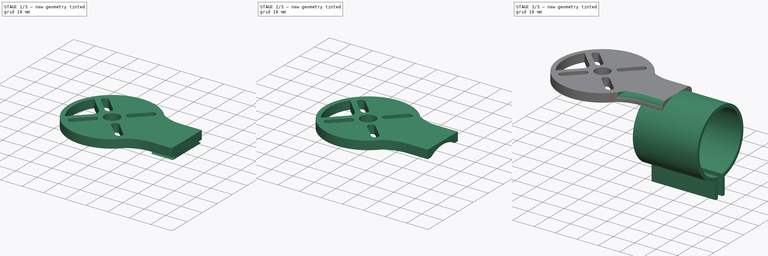
[diagram: build sequence overview — one tinted view per stage of 3, left to right]
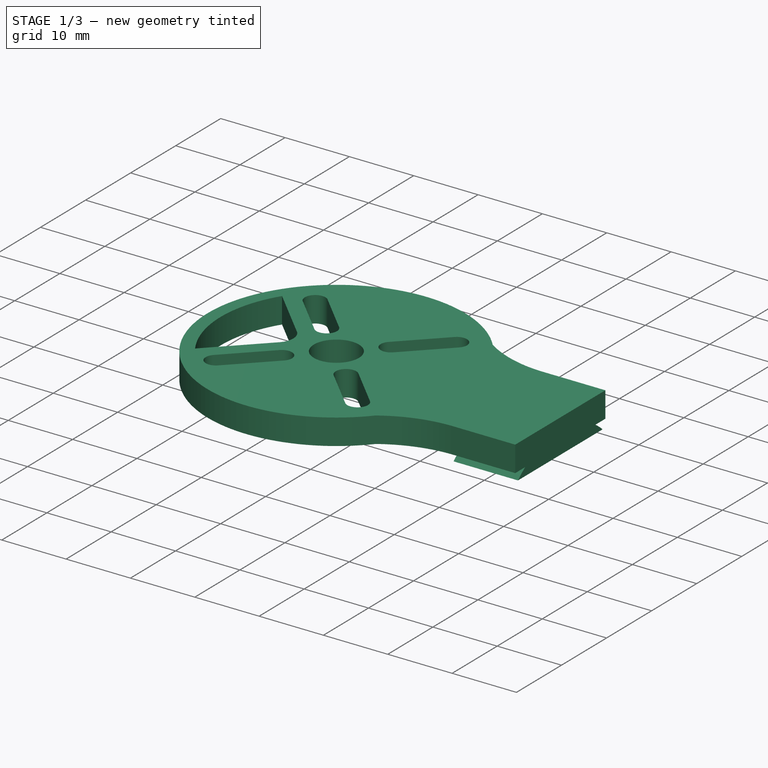
[diagram: stage 1 of 3 — iso view after this stage's code; geometry added in this stage tinted green]
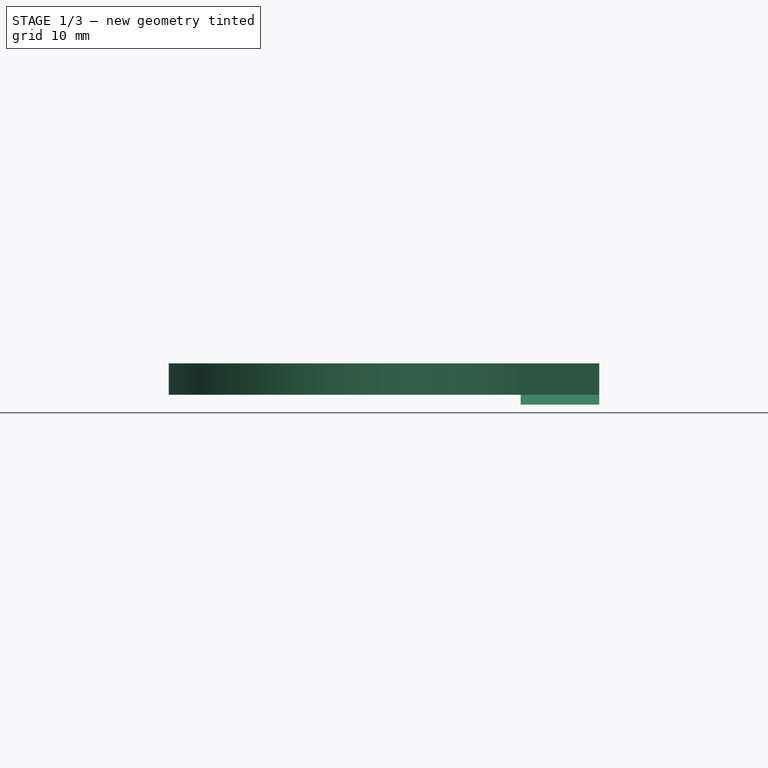
[diagram: stage 1 of 3 — front view after this stage's code; geometry added in this stage tinted green]
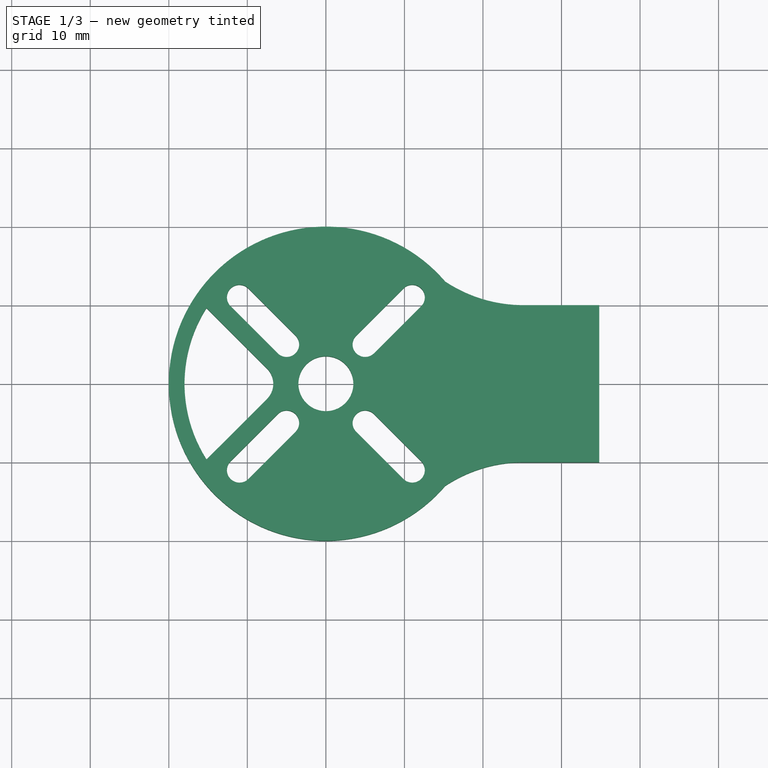
[diagram: stage 1 of 3 — top view after this stage's code; geometry added in this stage tinted green]
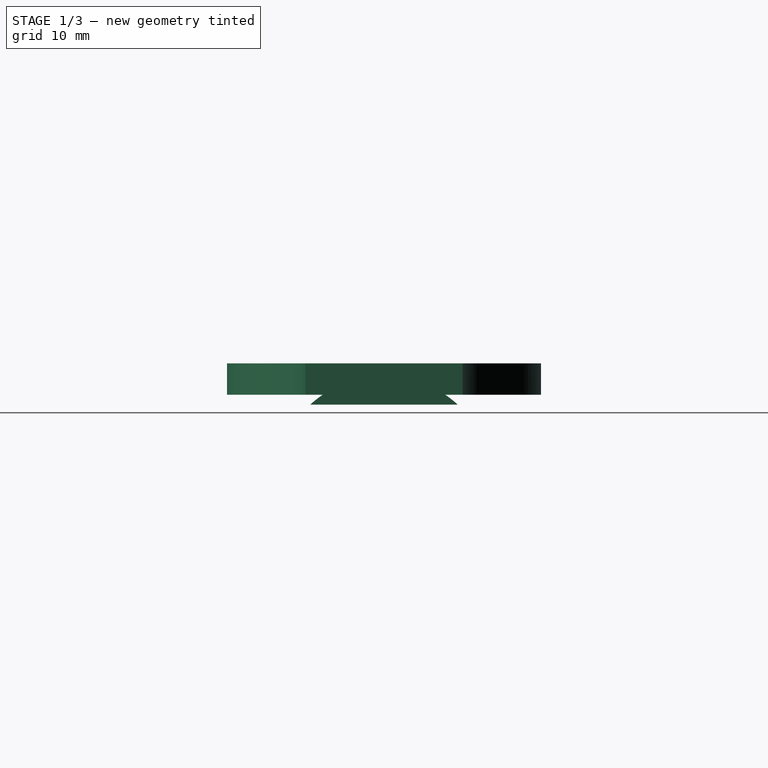
[diagram: stage 1 of 3 — right view after this stage's code; geometry added in this stage tinted green]
FCSTD DOCUMENT  (FreeCAD 0.16R6700 (Git))
Label: motor_mount_1
License: All rights reserved
LicenseURL: http://en.wikipedia.org/wiki/All_rights_reserved
objects: Sketcher::SketchObject×3, Part::Extrusion×3, Part::Cut×1, Part::Fillet×1
note: 8 computed .brp shape members not serialized (recipe doc carries the construction recipe); baked Part::Feature solids carry a one-line shape summary decoded from their .brp

FEATURE [Sketcher::SketchObject] Sketch002  label="Cutout_Sketch"
  Placement = pos=(34.8013,0,0) rot=(0.57735,0.57735,0.57735;2.0944rad)
  sketch-geometry (3):
    g0: LineSegment [constr] StartX=0 StartY=4 StartZ=0 EndX=0 EndY=-11.5 EndZ=0
    g1: ArcOfCircle CenterX=0 CenterY=-11.5 CenterZ=0 NormalX=0 NormalY=0 NormalZ=1 Radius=13.9 StartAngle=0.828429 EndAngle=2.31316
    g2: LineSegment StartX=-9.39688 StartY=-1.2575 StartZ=0 EndX=9.39688 EndY=-1.2575 EndZ=0
  constraints (8):
    c: PointOnObject(g0,g-2)
    c: Vertical(g0)
    c: Distance(g0) = 15.5
    c: Coincident(g1,g0)
    c: Symmetric(g1,g1,g0)
    c: Radius(g1) = 13.9
    c: Coincident(g2,g1)
    c: Coincident(g2,g1)
FEATURE [Part::Extrusion] Extrude  label="Motor_Base_Extrude"
  Base = -> Sketch
  Dir = (0,0,4)
  Solid = true
FEATURE [Part::Extrusion] Extrude003
  Base = -> Sketch002
  Dir = (-10,0,0)
  Solid = true
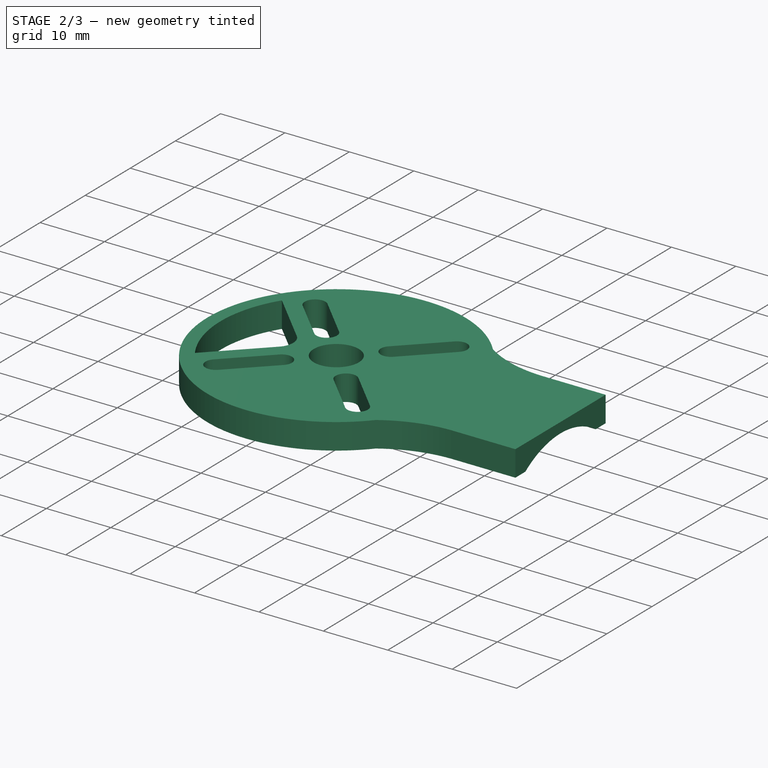
[diagram: stage 2 of 3 — iso view after this stage's code; geometry added in this stage tinted green]
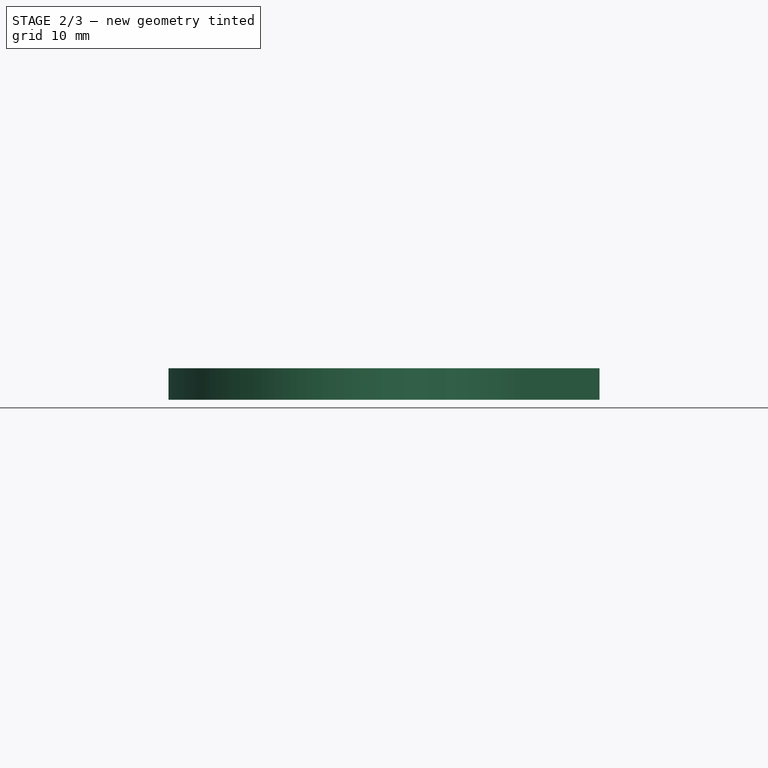
[diagram: stage 2 of 3 — front view after this stage's code; geometry added in this stage tinted green]
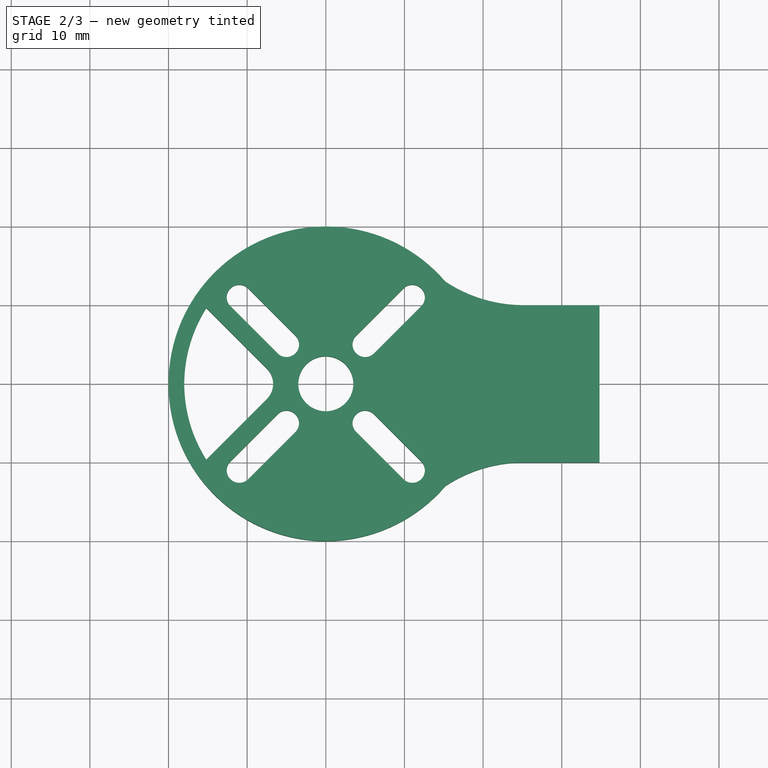
[diagram: stage 2 of 3 — top view after this stage's code; geometry added in this stage tinted green]
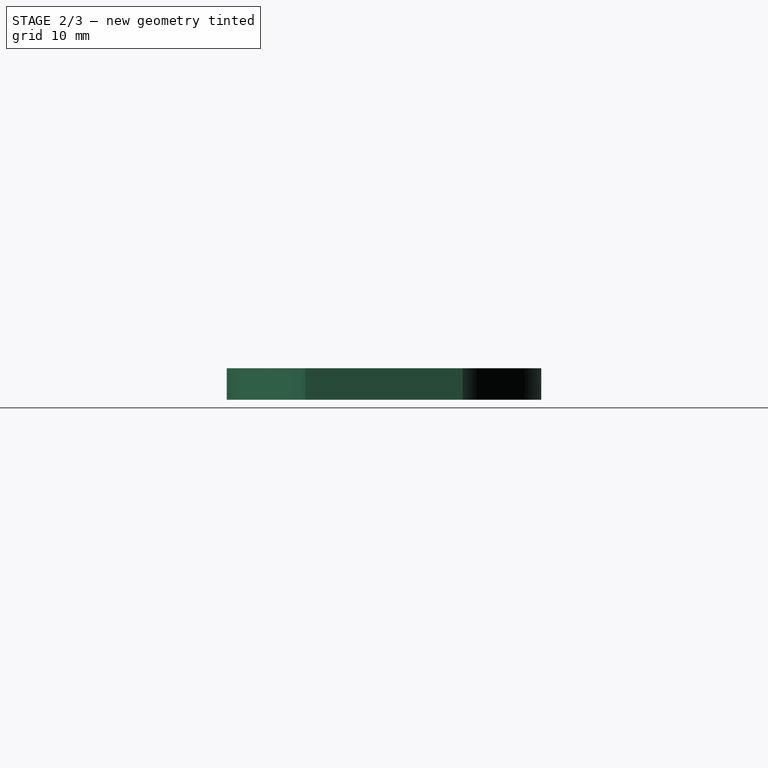
[diagram: stage 2 of 3 — right view after this stage's code; geometry added in this stage tinted green]
FEATURE [Part::Cut] Cut  label="Motor_Base_Cut"
  Base = -> Extrude
  Tool = -> Extrude003
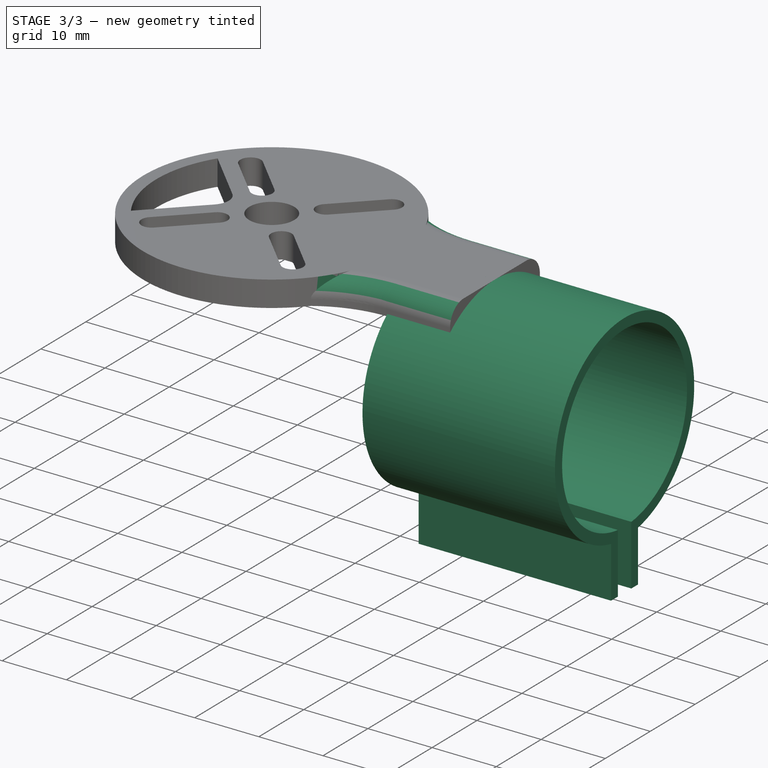
[diagram: stage 3 of 3 — iso view after this stage's code; geometry added in this stage tinted green]
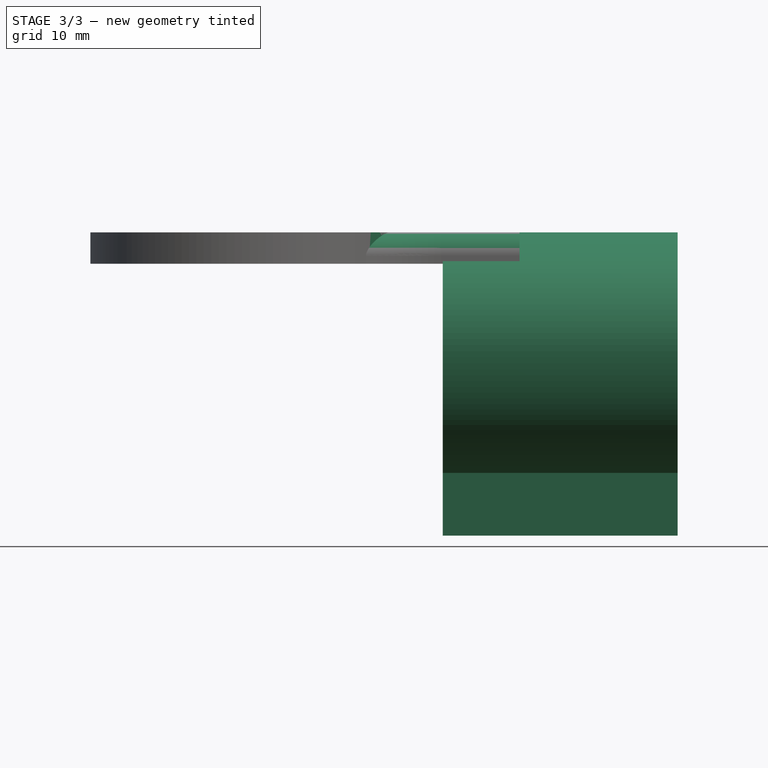
[diagram: stage 3 of 3 — front view after this stage's code; geometry added in this stage tinted green]
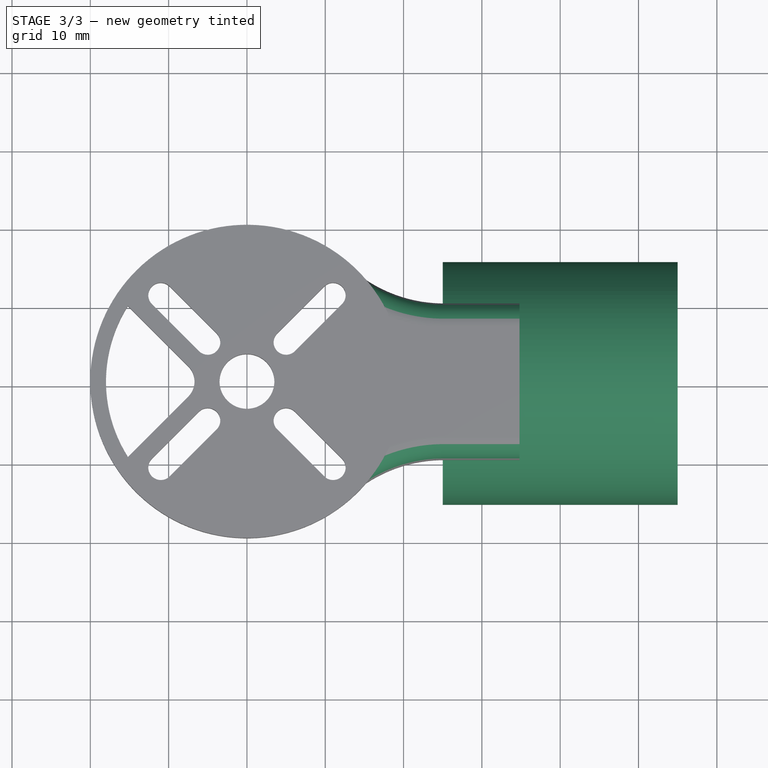
[diagram: stage 3 of 3 — top view after this stage's code; geometry added in this stage tinted green]
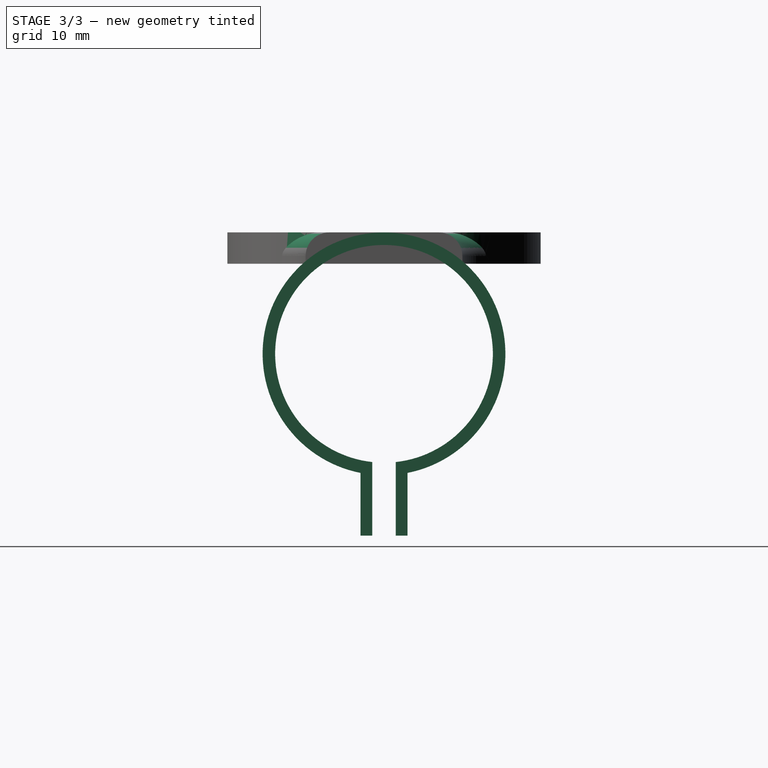
[diagram: stage 3 of 3 — right view after this stage's code; geometry added in this stage tinted green]
FEATURE [Sketcher::SketchObject] Sketch  label="Motor_Base_Sketch"
  sketch-geometry (43):
    g0: LineSegment [constr] StartX=-11 StartY=11 StartZ=0 EndX=11 EndY=11 EndZ=0
    g1: LineSegment [constr] StartX=11 StartY=11 StartZ=0 EndX=11 EndY=-11 EndZ=0
    g2: LineSegment [constr] StartX=11 StartY=-11 StartZ=0 EndX=-11 EndY=-11 EndZ=0
    g3: LineSegment [constr] StartX=-11 StartY=-11 StartZ=0 EndX=-11 EndY=11 EndZ=0
    g4: LineSegment [constr] StartX=-5 StartY=5 StartZ=0 EndX=5 EndY=5 EndZ=0
    g5: LineSegment [constr] StartX=5 StartY=5 StartZ=0 EndX=5 EndY=-5 EndZ=0
    g6: LineSegment [constr] StartX=5 StartY=-5 StartZ=0 EndX=-5 EndY=-5 EndZ=0
    g7: LineSegment [constr] StartX=-5 StartY=-5 StartZ=0 EndX=-5 EndY=5 EndZ=0
    g8: ArcOfCircle CenterX=5 CenterY=5 CenterZ=0 NormalX=0 NormalY=0 NormalZ=1 Radius=1.6 StartAngle=2.35619 EndAngle=5.49779
    g9: ArcOfCircle CenterX=11 CenterY=11 CenterZ=0 NormalX=0 NormalY=0 NormalZ=1 Radius=1.6 StartAngle=5.49779 EndAngle=8.63938
    g10: LineSegment StartX=6.13137 StartY=3.86863 StartZ=0 EndX=12.1314 EndY=9.86863 EndZ=0
    g11: LineSegment StartX=3.86863 StartY=6.13137 StartZ=0 EndX=9.86863 EndY=12.1314 EndZ=0
    g12: ArcOfCircle CenterX=-5 CenterY=5 CenterZ=0 NormalX=0 NormalY=0 NormalZ=1 Radius=1.6 StartAngle=3.92699 EndAngle=7.06858
    g13: ArcOfCircle CenterX=-11 CenterY=11 CenterZ=0 NormalX=0 NormalY=0 NormalZ=1 Radius=1.6 StartAngle=0.785398 EndAngle=3.92699
    g14: LineSegment StartX=-3.86863 StartY=6.13137 StartZ=0 EndX=-9.86863 EndY=12.1314 EndZ=0
    g15: LineSegment StartX=-6.13137 StartY=3.86863 StartZ=0 EndX=-12.1314 EndY=9.86863 EndZ=0
    g16: ArcOfCircle CenterX=-5 CenterY=-5 CenterZ=0 NormalX=0 NormalY=0 NormalZ=1 Radius=1.6 StartAngle=5.49779 EndAngle=8.63938
    g17: ArcOfCircle CenterX=-11 CenterY=-11 CenterZ=0 NormalX=0 NormalY=0 NormalZ=1 Radius=1.6 StartAngle=2.35619 EndAngle=5.49779
    g18: LineSegment StartX=-6.13137 StartY=-3.86863 StartZ=0 EndX=-12.1314 EndY=-9.86863 EndZ=0
    g19: LineSegment StartX=-3.86863 StartY=-6.13137 StartZ=0 EndX=-9.86863 EndY=-12.1314 EndZ=0
    g20: ArcOfCircle CenterX=5 CenterY=-5 CenterZ=0 NormalX=0 NormalY=0 NormalZ=1 Radius=1.6 StartAngle=0.785398 EndAngle=3.92699
    g21: ArcOfCircle CenterX=11 CenterY=-11 CenterZ=0 NormalX=0 NormalY=0 NormalZ=1 Radius=1.6 StartAngle=3.92699 EndAngle=7.06858
    g22: LineSegment StartX=3.86863 StartY=-6.13137 StartZ=0 EndX=9.86863 EndY=-12.1314 EndZ=0
    g23: LineSegment StartX=6.13137 StartY=-3.86863 StartZ=0 EndX=12.1314 EndY=-9.86863 EndZ=0
    g24: Circle CenterX=0 CenterY=0 CenterZ=0 NormalX=0 NormalY=0 NormalZ=1 Radius=3.5
    g25: LineSegment StartX=-15.1987 StartY=9.64365 StartZ=0 EndX=-7.5 EndY=1.94497 EndZ=0
    g26: LineSegment StartX=-15.1987 StartY=-9.64365 StartZ=0 EndX=-7.5 EndY=-1.94497 EndZ=0
    g27: ArcOfCircle CenterX=-9.44497 CenterY=0 CenterZ=0 NormalX=0 NormalY=0 NormalZ=1 Radius=2.7506 StartAngle=5.49779 EndAngle=7.06858
    g28: LineSegment [constr] StartX=-7.5 StartY=7.5 StartZ=0 EndX=7.5 EndY=7.5 EndZ=0
    g29: LineSegment [constr] StartX=7.5 StartY=7.5 StartZ=0 EndX=7.5 EndY=-7.5 EndZ=0
    g30: LineSegment [constr] StartX=7.5 StartY=-7.5 StartZ=0 EndX=-7.5 EndY=-7.5 EndZ=0
    g31: LineSegment [constr] StartX=-7.5 StartY=-7.5 StartZ=0 EndX=-7.5 EndY=7.5 EndZ=0
    g32: LineSegment [constr] StartX=-15.1987 StartY=13 StartZ=0 EndX=24.8013 EndY=13 EndZ=0
    g33: LineSegment [constr] StartX=24.8013 StartY=-13 StartZ=0 EndX=-15.1987 EndY=-13 EndZ=0
    g34: LineSegment [constr] StartX=-15.1987 StartY=-13 StartZ=0 EndX=-15.1987 EndY=13 EndZ=0
    g35: ArcOfCircle CenterX=0 CenterY=0 CenterZ=0 NormalX=0 NormalY=0 NormalZ=1 Radius=20 StartAngle=0.707584 EndAngle=5.5756
    g36: ArcOfCircle CenterX=0 CenterY=0 CenterZ=0 NormalX=0 NormalY=0 NormalZ=1 Radius=18 StartAngle=2.57619 EndAngle=3.707
    g37: ArcOfCircle CenterX=25.1538 CenterY=27.9965 CenterZ=0 NormalX=0 NormalY=0 NormalZ=1 Radius=18 StartAngle=4.12636 EndAngle=4.69281
    g38: ArcOfCircle CenterX=25.1538 CenterY=-27.9965 CenterZ=0 NormalX=0 NormalY=0 NormalZ=1 Radius=18 StartAngle=1.59038 EndAngle=2.15683
    g39: LineSegment [constr] StartX=24.8013 StartY=13 StartZ=0 EndX=24.8013 EndY=-13 EndZ=0
    g40: LineSegment StartX=24.8013 StartY=10 StartZ=0 EndX=34.8013 EndY=10 EndZ=0
    g41: LineSegment StartX=34.8013 StartY=10 StartZ=0 EndX=34.8013 EndY=-10 EndZ=0
    g42: LineSegment StartX=34.8013 StartY=-10 StartZ=0 EndX=24.8013 EndY=-10 EndZ=0
  constraints (112):
    c: Coincident(g0,g1)
    c: Coincident(g1,g2)
    c: Coincident(g2,g3)
    c: Coincident(g3,g0)
    c: Horizontal(g0)
    c: Horizontal(g2)
    c: Vertical(g1)
    c: Vertical(g3)
    c: Coincident(g4,g5)
    c: Coincident(g5,g6)
    c: Coincident(g6,g7)
    c: Coincident(g7,g4)
    c: Horizontal(g4)
    c: Horizontal(g6)
    c: Vertical(g5)
    c: Vertical(g7)
    c: Tangent(g8,g11) = 1.5708
    c: Tangent(g8,g10) = -1.5708
    c: Tangent(g10,g9) = -1.5708
    c: Tangent(g11,g9) = 1.5708
    c: Equal(g8,g9)
    c: Coincident(g8,g4)
    c: Coincident(g9,g0)
    c: Tangent(g12,g15) = 1.5708
    c: Tangent(g12,g14) = -1.5708
    c: Tangent(g14,g13) = -1.5708
    c: Tangent(g15,g13) = 1.5708
    c: Equal(g12,g13)
    c: Coincident(g12,g4)
    c: Coincident(g13,g0)
    c: Tangent(g16,g19) = 1.5708
    c: Tangent(g16,g18) = -1.5708
    c: Tangent(g18,g17) = -1.5708
    c: Tangent(g19,g17) = 1.5708
    c: Equal(g16,g17)
    c: Coincident(g16,g6)
    c: Coincident(g17,g2)
    c: Equal(g12,g16)
    c: Equal(g16,g8)
    c: Tangent(g20,g23) = 1.5708
    c: Tangent(g20,g22) = -1.5708
    c: Tangent(g22,g21) = -1.5708
    c: Tangent(g23,g21) = 1.5708
    c: Equal(g20,g21)
    c: Coincident(g20,g5)
    c: Coincident(g21,g1)
    c: Equal(g20,g16)
    c: Radius(g21) = 1.6
    c: Symmetric(g0,g0,g-2)
    c: Symmetric(g4,g4,g-2)
    c: Symmetric(g4,g6,g-1)
    c: Symmetric(g0,g2,g-1)
    c: Coincident(g24,g-1)
    c: Radius(g24) = 3.5
    c: Equal(g7,g4)
    c: Equal(g3,g0)
    c: Distance(g4) = 10
    c: Distance(g0) = 22
    c: Tangent(g25,g27) = 1.5708
    c: Tangent(g26,g27) = -1.5708
    c: Coincident(g28,g29)
    c: Coincident(g29,g30)
    c: Coincident(g30,g31)
    c: Coincident(g31,g28)
    c: Horizontal(g28)
    c: Horizontal(g30)
    c: Vertical(g29)
    c: Symmetric(g28,g30,g-1)
    c: Symmetric(g29,g30,g-2)
    c: Distance(g28) = 15
    c: PointOnObject(g25,g31)
    c: PointOnObject(g26,g31)
    c: Coincident(g33,g34)
    c: Coincident(g34,g32)
    c: Horizontal(g32)
    c: Horizontal(g33)
    c: Vertical(g34)
    c: PointOnObject(g27,g-1)
    c: Parallel(g26,g18)
    c: Equal(g28,g31)
    c: Coincident(g35,g-1)
    c: PointOnObject(g35,g32)
    c: PointOnObject(g35,g33)
    c: Radius(g35) = 20
    c: Coincident(g36,g-1)
    c: Symmetric(g26,g25,g-1)
    c: PointOnObject(g36,g34)
    c: Symmetric(g36,g36,g-1)
    c: PointOnObject(g32,g35)
    c: Coincident(g36,g25)
    c: Coincident(g37,g35)
    c: Radius(g37) = 18
    c: Distance(g32) = 40
    c: PointOnObject(g33,g35)
    c: DistanceY(g34,g34) = 26
    c: Radius(g36) = 18
    c: Coincident(g38,g35)
    c: Symmetric(g38,g37,g-1)
    c: Equal(g38,g37)
    c: Coincident(g39,g32)
    c: Coincident(g39,g33)
    c: Vertical(g39)
    c: PointOnObject(g37,g39)
    c: Coincident(g40,g37)
    c: Horizontal(g40)
    c: Coincident(g41,g40)
    c: Vertical(g41)
    c: Coincident(g42,g41)
    c: Coincident(g42,g38)
    c: Horizontal(g42)
    c: Distance(g42) = 10
    c: Distance(g41) = 20
FEATURE [Sketcher::SketchObject] Sketch001  label="Bracket_Sketch"
  Placement = pos=(25,0,0) rot=(0.57735,0.57735,0.57735;2.0944rad)
  expr: Placement.Base.x = 25
  sketch-geometry (8):
    g0: ArcOfCircle CenterX=0 CenterY=-11.5 CenterZ=0 NormalX=0 NormalY=0 NormalZ=1 Radius=15.5 StartAngle=4.90717 EndAngle=10.8008
    g1: ArcOfCircle CenterX=0 CenterY=-11.5 CenterZ=0 NormalX=0 NormalY=0 NormalZ=1 Radius=13.9 StartAngle=4.82051 EndAngle=10.8875
    g2: LineSegment StartX=-3 StartY=-26.7069 StartZ=0 EndX=-3 EndY=-34.7069 EndZ=0
    g3: LineSegment StartX=-3 StartY=-34.7069 StartZ=0 EndX=-1.5 EndY=-34.7069 EndZ=0
    g4: LineSegment StartX=-1.5 StartY=-34.7069 StartZ=0 EndX=-1.5 EndY=-25.3188 EndZ=0
    g5: LineSegment StartX=3 StartY=-26.7069 StartZ=0 EndX=3 EndY=-34.7069 EndZ=0
    g6: LineSegment StartX=3 StartY=-34.7069 StartZ=0 EndX=1.5 EndY=-34.7069 EndZ=0
    g7: LineSegment StartX=1.5 StartY=-34.7069 StartZ=0 EndX=1.5 EndY=-25.3188 EndZ=0
  constraints (23):
    c: Symmetric(g0,g0,g-2)
    c: Radius(g0) = 15.5
    c: Coincident(g1,g0)
    c: Symmetric(g1,g1,g-2)
    c: Radius(g1) = 13.9
    c: Distance(g1,g1) = 3
    c: Distance(g0,g0) = 6
    c: Coincident(g2,g0)
    c: Vertical(g2)
    c: Coincident(g3,g2)
    c: Horizontal(g3)
    c: Coincident(g4,g3)
    c: Coincident(g4,g1)
    c: Vertical(g4)
    c: Coincident(g5,g0)
    c: Vertical(g5)
    c: Coincident(g6,g5)
    c: Horizontal(g6)
    c: Coincident(g7,g6)
    c: Coincident(g7,g1)
    c: Vertical(g7)
    c: Distance(g2) = 8
    c: Equal(g5,g2)
FEATURE [Part::Extrusion] Extrude002  label="Bracket_Cylinder"
  Base = -> Sketch001
  Dir = (30,0,0)
  Solid = true
FEATURE [Part::Fillet] Fillet
  Base = -> Cut
  Edges = 2 edges r=3: [Edge39,Edge41]
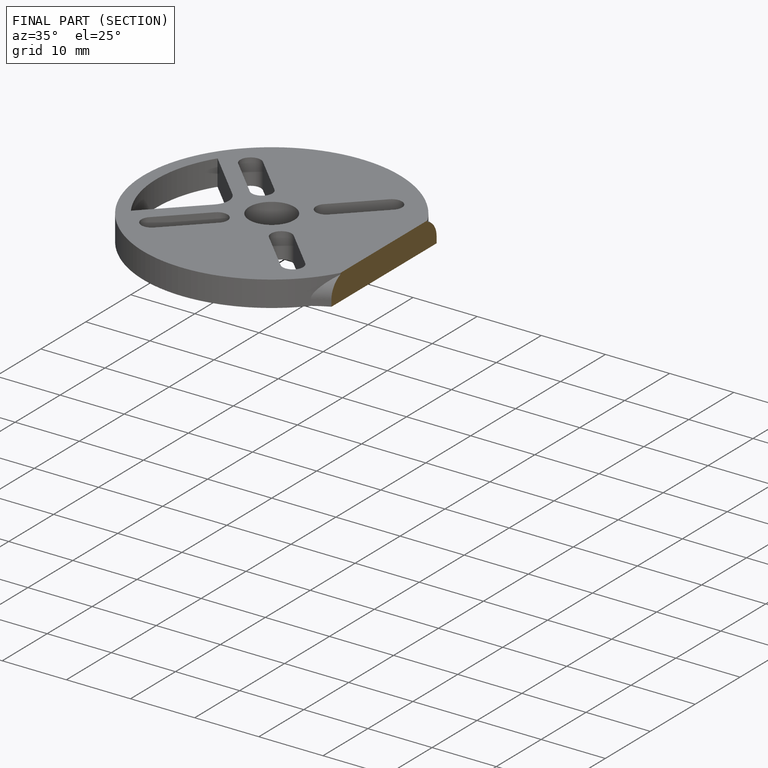
[diagram: finished part — half-section view (interior)]
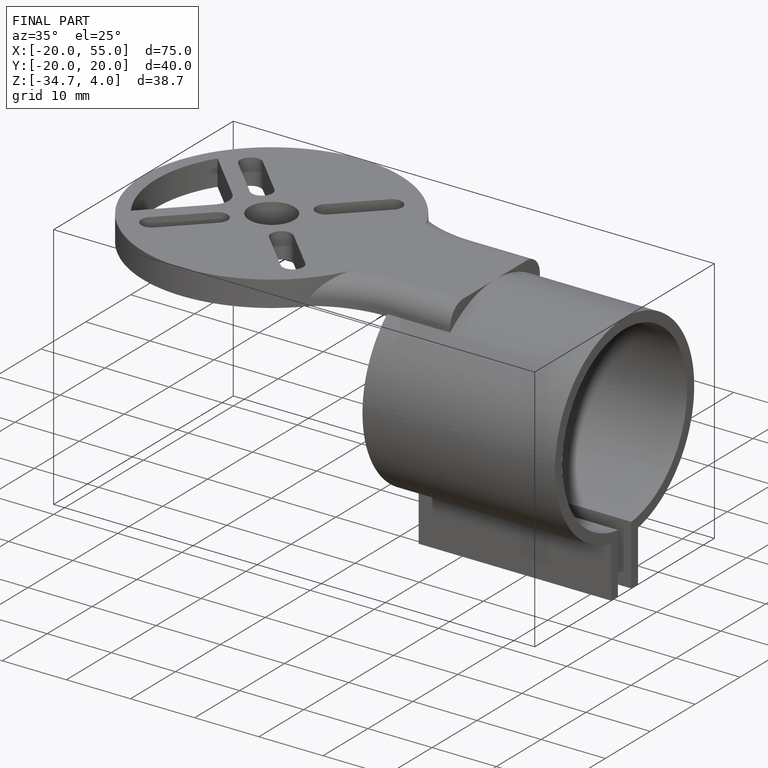
[diagram: finished part — iso view with bounding-box wireframe]
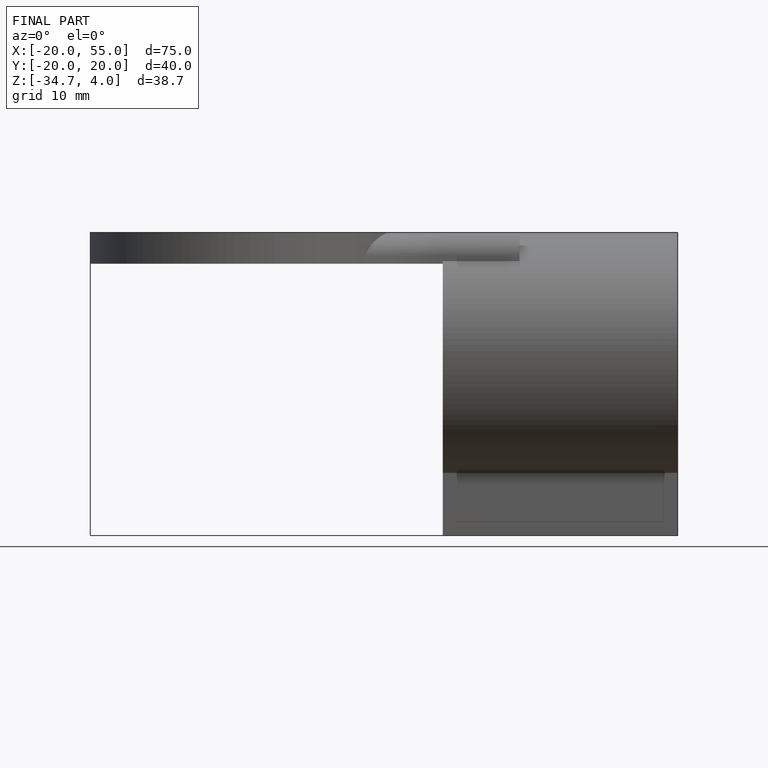
[diagram: finished part — front view with bounding-box wireframe]
